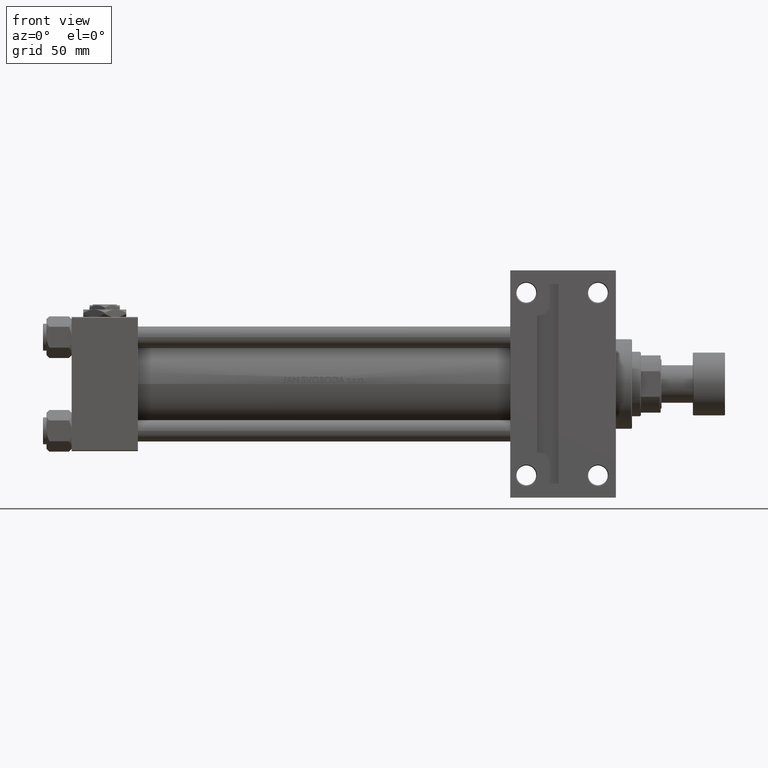
[diagram: clean part render]
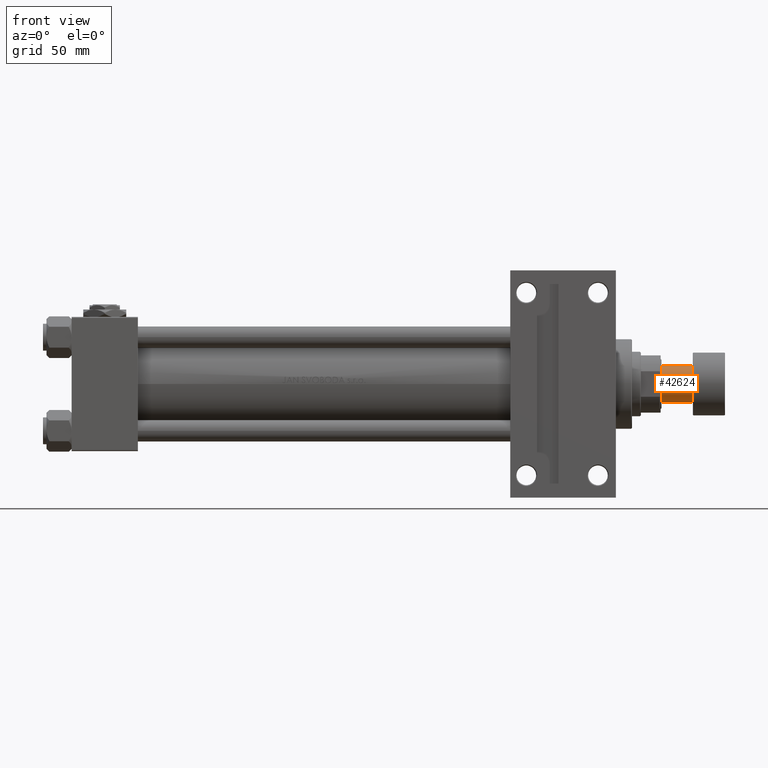
[diagram: same view with one face highlighted and labeled with its STEP entity id]
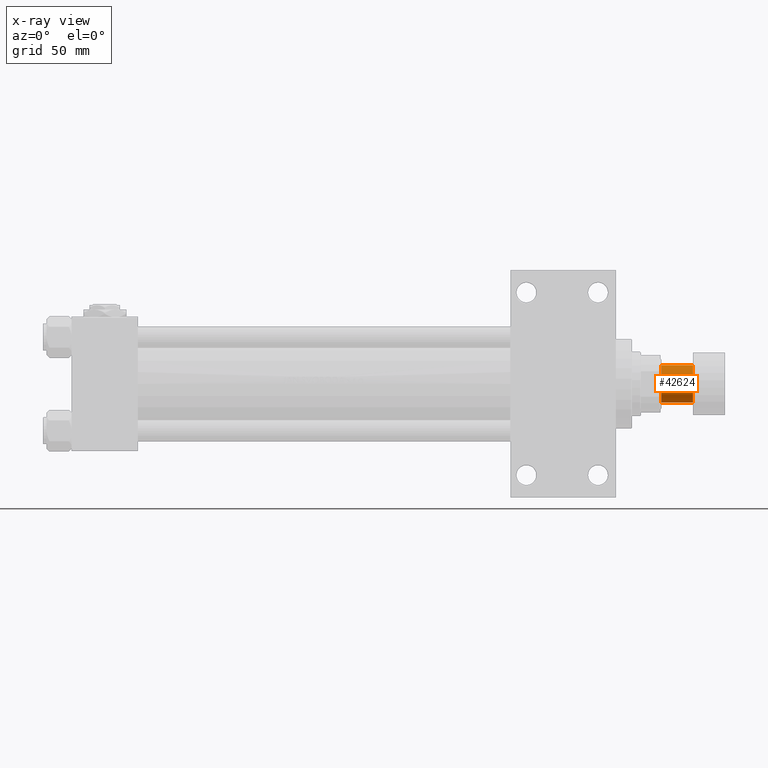
[diagram: x-ray of the same camera — body ghosted, the highlighted face saturated]
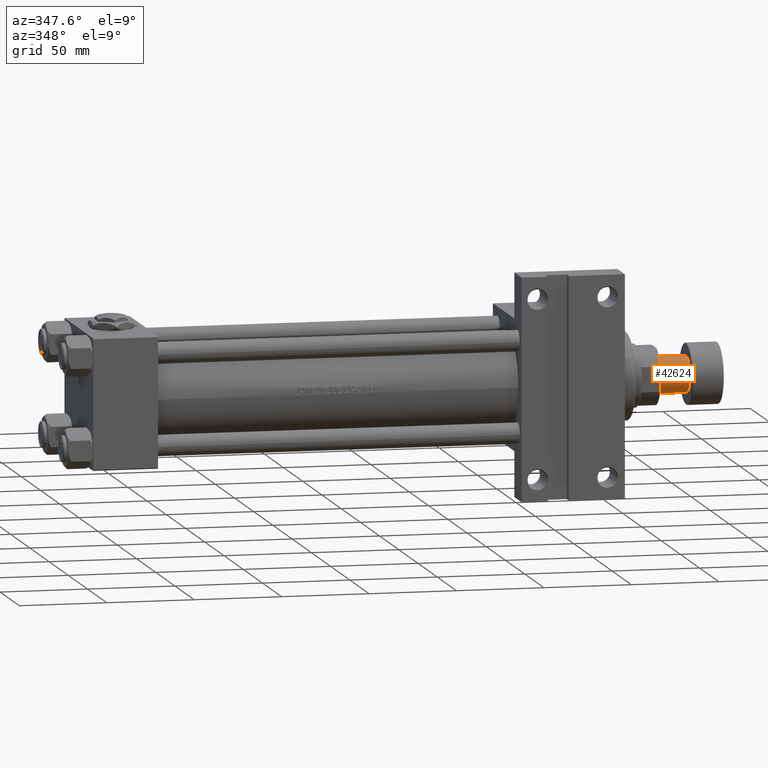
[diagram: same view with one face highlighted and labeled with its STEP entity id]
A machine part, front view. The second image highlights one B-rep face of the part: STEP entity #42624.
The next image is the same camera in x-ray: the body ghosted, the highlighted face saturated — about 0% of this face is hidden behind the body in this view.
A second angle (auxiliary view) of the same face is appended — the face is thin or edge-on in the first view.
In plain terms, the highlighted cylindrical surface (edge-blend (fillet) strip) has radius 10.5 mm, axis along (1, 0, 0).
Its self-contained STEP definition (entity closure, byte-faithful):
#1100 = CARTESIAN_POINT ( 'NONE',  ( 10.50000000000000000, 0.000000000000000000, -18.00000000000000000 ) ) ;
#3456 = VERTEX_POINT ( 'NONE', #18155 ) ;
#4478 = CARTESIAN_POINT ( 'NONE',  ( -10.50000000000000000, 1.285879139104720831E-15, -18.00000000000000000 ) ) ;
#6142 = DIRECTION ( 'NONE',  ( -0.000000000000000000, -0.000000000000000000, 1.000000000000000000 ) ) ;
#9318 = ORIENTED_EDGE ( 'NONE', *, *, #32236, .F. ) ;
#11454 = VERTEX_POINT ( 'NONE', #12479 ) ;
#12479 = CARTESIAN_POINT ( 'NONE',  ( 10.50000000000000000, 0.000000000000000000, -35.50000000000000711 ) ) ;
#12735 = CARTESIAN_POINT ( 'NONE',  ( 0.000000000000000000, 0.000000000000000000, -18.00000000000000000 ) ) ;
#12980 = DIRECTION ( 'NONE',  ( -1.000000000000000000, 0.000000000000000000, 0.000000000000000000 ) ) ;
#13951 = DIRECTION ( 'NONE',  ( -1.000000000000000000, 0.000000000000000000, 0.000000000000000000 ) ) ;
#15794 = ORIENTED_EDGE ( 'NONE', *, *, #46055, .T. ) ;
#15803 = VECTOR ( 'NONE', #22711, 1000.000000000000000 ) ;
#18060 = DIRECTION ( 'NONE',  ( -0.000000000000000000, -0.000000000000000000, 1.000000000000000000 ) ) ;
#18155 = CARTESIAN_POINT ( 'NONE',  ( -10.50000000000000000, 1.285879139104720831E-15, -35.50000000000000711 ) ) ;
#21422 = CARTESIAN_POINT ( 'NONE',  ( 0.000000000000000000, 0.000000000000000000, -35.50000000000000711 ) ) ;
#21452 = CARTESIAN_POINT ( 'NONE',  ( 0.000000000000000000, 0.000000000000000000, -35.50000000000000711 ) ) ;
#22411 = CIRCLE ( 'NONE', #23214, 10.50000000000000000 ) ;
#22711 = DIRECTION ( 'NONE',  ( -0.000000000000000000, -0.000000000000000000, 1.000000000000000000 ) ) ;
#22950 = AXIS2_PLACEMENT_3D ( 'NONE', #12735, #40052, #12980 ) ;
#23214 = AXIS2_PLACEMENT_3D ( 'NONE', #21452, #33464, #13951 ) ;
#29531 = VERTEX_POINT ( 'NONE', #4478 ) ;
#29688 = DIRECTION ( 'NONE',  ( 1.000000000000000000, 0.000000000000000000, 0.000000000000000000 ) ) ;
#29852 = EDGE_CURVE ( 'NONE', #3456, #29531, #30478, .T. ) ;
#30478 = LINE ( 'NONE', #41774, #15803 ) ;
#31325 = EDGE_LOOP ( 'NONE', ( #42890, #9318, #15794, #45071 ) ) ;
#32236 = EDGE_CURVE ( 'NONE', #11454, #3456, #22411, .T. ) ;
#33464 = DIRECTION ( 'NONE',  ( 0.000000000000000000, 0.000000000000000000, -1.000000000000000000 ) ) ;
#34182 = CIRCLE ( 'NONE', #22950, 10.50000000000000000 ) ;
#34566 = VERTEX_POINT ( 'NONE', #1100 ) ;
#36099 = VECTOR ( 'NONE', #18060, 1000.000000000000000 ) ;
#36634 = LINE ( 'NONE', #44648, #36099 ) ;
#37515 = AXIS2_PLACEMENT_3D ( 'NONE', #21422, #6142, #29688 ) ;
#37625 = EDGE_CURVE ( 'NONE', #34566, #29531, #34182, .T. ) ;
#40052 = DIRECTION ( 'NONE',  ( 0.000000000000000000, 0.000000000000000000, -1.000000000000000000 ) ) ;
#41774 = CARTESIAN_POINT ( 'NONE',  ( -10.50000000000000000, 1.285879139104720831E-15, -35.50000000000000711 ) ) ;
#42624 = ADVANCED_FACE ( 'NONE', ( #48256 ), #48733, .T. ) ;
#42890 = ORIENTED_EDGE ( 'NONE', *, *, #29852, .F. ) ;
#44648 = CARTESIAN_POINT ( 'NONE',  ( 10.50000000000000000, 0.000000000000000000, -35.50000000000000711 ) ) ;
#45071 = ORIENTED_EDGE ( 'NONE', *, *, #37625, .T. ) ;
#46055 = EDGE_CURVE ( 'NONE', #11454, #34566, #36634, .T. ) ;
#48256 = FACE_OUTER_BOUND ( 'NONE', #31325, .T. ) ;
#48733 = CYLINDRICAL_SURFACE ( 'NONE', #37515, 10.50000000000000000 ) ;